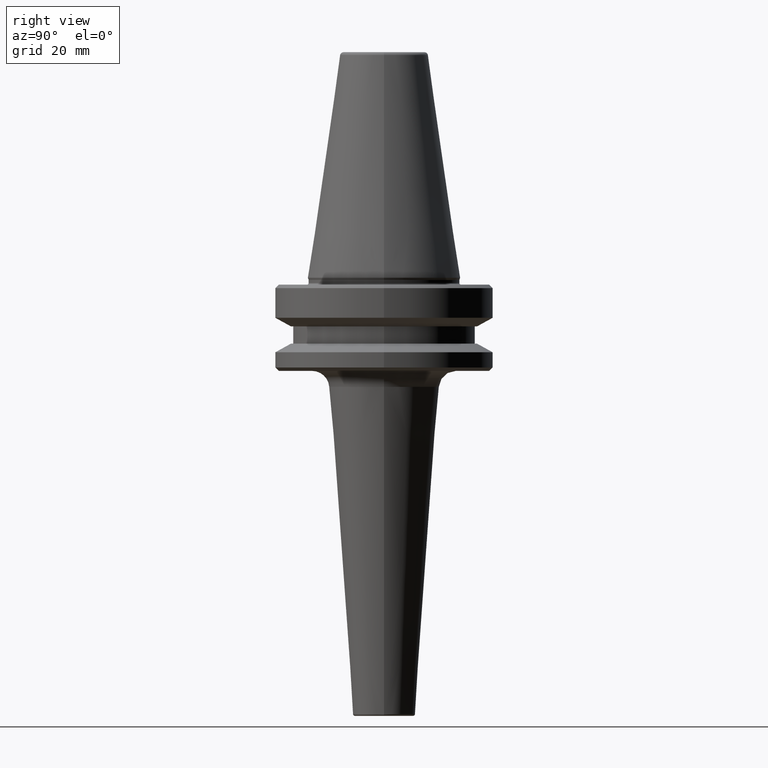
[diagram: clean part render]
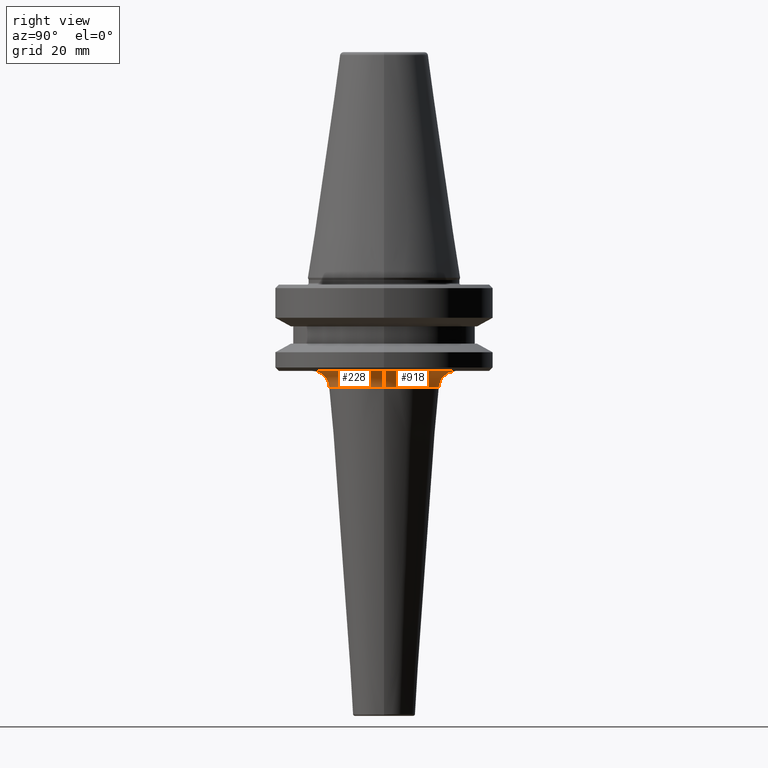
[diagram: same view with one multi-face feature highlighted, each face labeled with its STEP entity id]
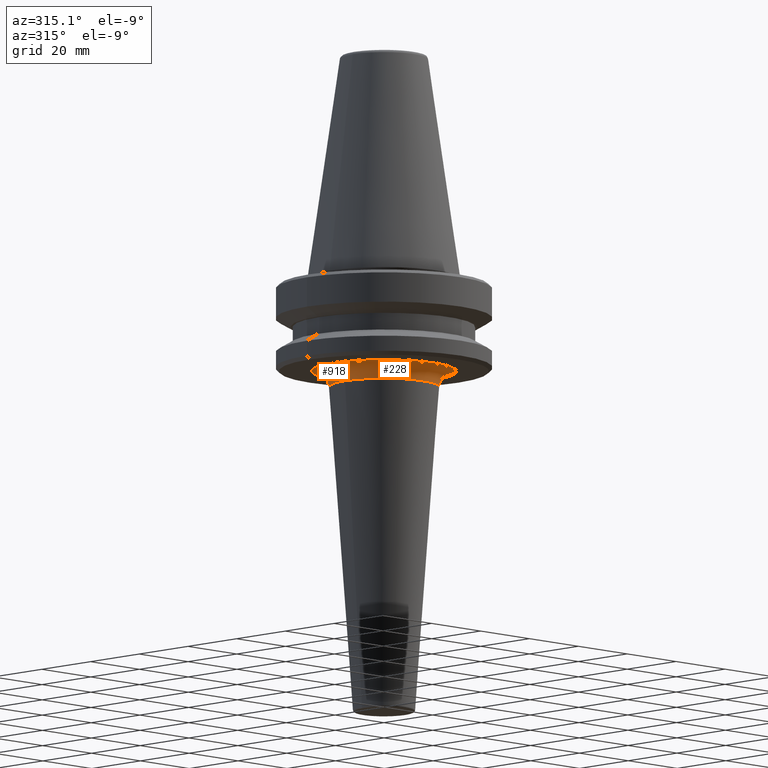
[diagram: same view with one multi-face feature highlighted, each face labeled with its STEP entity id]
A machine part, right view. The highlighted faces form ONE feature: a constant-radius fillet chain: 2 tangent blend faces with common blend radius 5 mm. The faces share edges in the B-rep.
A second angle (auxiliary view) of the same feature is appended — it is thin or edge-on in the first view.
Their STEP definitions:
[1] entity #228 (Torus):
#16 = AXIS2_PLACEMENT_3D ( 'NONE', #856, #888, #186 ) ;
#23 = ORIENTED_EDGE ( 'NONE', *, *, #433, .T. ) ;
#41 = CARTESIAN_POINT ( 'NONE',  ( 20.98658476879180800, 0.0000000000000000000, -97.40000000000806300 ) ) ;
#49 = CARTESIAN_POINT ( 'NONE',  ( -16.00000000000000400, 2.264775132424656500E-015, -97.03397767329343500 ) ) ;
#67 = EDGE_CURVE ( 'NONE', #274, #921, #635, .T. ) ;
#125 = FACE_OUTER_BOUND ( 'NONE', #676, .T. ) ;
#126 = EDGE_CURVE ( 'NONE', #921, #365, #397, .T. ) ;
#186 = DIRECTION ( 'NONE',  ( 1.000000000000000000, 0.0000000000000000000, 0.0000000000000000000 ) ) ;
#208 = CARTESIAN_POINT ( 'NONE',  ( -20.98658476879180800, 2.570115386213548200E-015, -92.40000000000806300 ) ) ;
#227 = CARTESIAN_POINT ( 'NONE',  ( 16.00000000000000400, 0.0000000000000000000, -97.03397767329343500 ) ) ;
#228 = ADVANCED_FACE ( 'NONE', ( #125 ), #958, .F. ) ;
#231 = ORIENTED_EDGE ( 'NONE', *, *, #417, .T. ) ;
#261 = AXIS2_PLACEMENT_3D ( 'NONE', #923, #850, #595 ) ;
#274 = VERTEX_POINT ( 'NONE', #208 ) ;
#295 = DIRECTION ( 'NONE',  ( 1.000000000000000000, 0.0000000000000000000, 0.0000000000000000000 ) ) ;
#356 = ORIENTED_EDGE ( 'NONE', *, *, #67, .F. ) ;
#360 = CARTESIAN_POINT ( 'NONE',  ( -20.98658476879180800, 2.570115386213548200E-015, -97.40000000000806300 ) ) ;
#365 = VERTEX_POINT ( 'NONE', #227 ) ;
#397 = CIRCLE ( 'NONE', #687, 5.000000000000004400 ) ;
#417 = EDGE_CURVE ( 'NONE', #274, #803, #807, .T. ) ;
#433 = EDGE_CURVE ( 'NONE', #803, #365, #981, .T. ) ;
#474 = DIRECTION ( 'NONE',  ( 1.224646799147353200E-016, 1.000000000000000000, 0.0000000000000000000 ) ) ;
#485 = DIRECTION ( 'NONE',  ( 0.0000000000000000000, 0.0000000000000000000, -1.000000000000000000 ) ) ;
#555 = CARTESIAN_POINT ( 'NONE',  ( 20.98658476879180800, 0.0000000000000000000, -92.40000000000806300 ) ) ;
#595 = DIRECTION ( 'NONE',  ( 1.000000000000000000, 0.0000000000000000000, 0.0000000000000000000 ) ) ;
#635 = CIRCLE ( 'NONE', #261, 20.98658476879180800 ) ;
#647 = CARTESIAN_POINT ( 'NONE',  ( 0.0000000000000000000, 0.0000000000000000000, -97.03397767329343500 ) ) ;
#676 = EDGE_LOOP ( 'NONE', ( #356, #231, #23, #893 ) ) ;
#687 = AXIS2_PLACEMENT_3D ( 'NONE', #41, #800, #485 ) ;
#725 = AXIS2_PLACEMENT_3D ( 'NONE', #360, #474, #848 ) ;
#779 = AXIS2_PLACEMENT_3D ( 'NONE', #647, #858, #295 ) ;
#800 = DIRECTION ( 'NONE',  ( 0.0000000000000000000, -1.000000000000000000, 0.0000000000000000000 ) ) ;
#803 = VERTEX_POINT ( 'NONE', #49 ) ;
#807 = CIRCLE ( 'NONE', #725, 5.000000000000008000 ) ;
#848 = DIRECTION ( 'NONE',  ( -1.000000000000000000, 1.224646799147353000E-016, 0.0000000000000000000 ) ) ;
#850 = DIRECTION ( 'NONE',  ( -0.0000000000000000000, -0.0000000000000000000, 1.000000000000000000 ) ) ;
#856 = CARTESIAN_POINT ( 'NONE',  ( 0.0000000000000000000, 0.0000000000000000000, -97.40000000000806300 ) ) ;
#858 = DIRECTION ( 'NONE',  ( -0.0000000000000000000, -0.0000000000000000000, 1.000000000000000000 ) ) ;
#888 = DIRECTION ( 'NONE',  ( -0.0000000000000000000, -0.0000000000000000000, 1.000000000000000000 ) ) ;
#893 = ORIENTED_EDGE ( 'NONE', *, *, #126, .F. ) ;
#921 = VERTEX_POINT ( 'NONE', #555 ) ;
#923 = CARTESIAN_POINT ( 'NONE',  ( 0.0000000000000000000, 0.0000000000000000000, -92.40000000000804900 ) ) ;
#958 = TOROIDAL_SURFACE ( 'NONE', #16, 20.98658476879180800, 5.000000000000009800 ) ;
#981 = CIRCLE ( 'NONE', #779, 16.00000000000000400 ) ;
[2] entity #918 (Torus):
#10 = AXIS2_PLACEMENT_3D ( 'NONE', #862, #826, #1049 ) ;
#24 = DIRECTION ( 'NONE',  ( 1.000000000000000000, 0.0000000000000000000, 0.0000000000000000000 ) ) ;
#41 = CARTESIAN_POINT ( 'NONE',  ( 20.98658476879180800, 0.0000000000000000000, -97.40000000000806300 ) ) ;
#49 = CARTESIAN_POINT ( 'NONE',  ( -16.00000000000000400, 2.264775132424656500E-015, -97.03397767329343500 ) ) ;
#97 = EDGE_CURVE ( 'NONE', #921, #274, #422, .T. ) ;
#126 = EDGE_CURVE ( 'NONE', #921, #365, #397, .T. ) ;
#208 = CARTESIAN_POINT ( 'NONE',  ( -20.98658476879180800, 2.570115386213548200E-015, -92.40000000000806300 ) ) ;
#209 = CARTESIAN_POINT ( 'NONE',  ( 0.0000000000000000000, 0.0000000000000000000, -97.03397767329343500 ) ) ;
#227 = CARTESIAN_POINT ( 'NONE',  ( 16.00000000000000400, 0.0000000000000000000, -97.03397767329343500 ) ) ;
#254 = ORIENTED_EDGE ( 'NONE', *, *, #564, .T. ) ;
#274 = VERTEX_POINT ( 'NONE', #208 ) ;
#332 = AXIS2_PLACEMENT_3D ( 'NONE', #209, #700, #24 ) ;
#360 = CARTESIAN_POINT ( 'NONE',  ( -20.98658476879180800, 2.570115386213548200E-015, -97.40000000000806300 ) ) ;
#365 = VERTEX_POINT ( 'NONE', #227 ) ;
#397 = CIRCLE ( 'NONE', #687, 5.000000000000004400 ) ;
#403 = TOROIDAL_SURFACE ( 'NONE', #10, 20.98658476879180800, 5.000000000000009800 ) ;
#413 = CARTESIAN_POINT ( 'NONE',  ( 0.0000000000000000000, 0.0000000000000000000, -92.40000000000804900 ) ) ;
#417 = EDGE_CURVE ( 'NONE', #274, #803, #807, .T. ) ;
#422 = CIRCLE ( 'NONE', #424, 20.98658476879180800 ) ;
#424 = AXIS2_PLACEMENT_3D ( 'NONE', #413, #575, #810 ) ;
#462 = ORIENTED_EDGE ( 'NONE', *, *, #97, .F. ) ;
#474 = DIRECTION ( 'NONE',  ( 1.224646799147353200E-016, 1.000000000000000000, 0.0000000000000000000 ) ) ;
#477 = CIRCLE ( 'NONE', #332, 16.00000000000000400 ) ;
#485 = DIRECTION ( 'NONE',  ( 0.0000000000000000000, 0.0000000000000000000, -1.000000000000000000 ) ) ;
#555 = CARTESIAN_POINT ( 'NONE',  ( 20.98658476879180800, 0.0000000000000000000, -92.40000000000806300 ) ) ;
#564 = EDGE_CURVE ( 'NONE', #365, #803, #477, .T. ) ;
#572 = EDGE_LOOP ( 'NONE', ( #790, #462, #602, #254 ) ) ;
#575 = DIRECTION ( 'NONE',  ( -0.0000000000000000000, -0.0000000000000000000, 1.000000000000000000 ) ) ;
#602 = ORIENTED_EDGE ( 'NONE', *, *, #126, .T. ) ;
#687 = AXIS2_PLACEMENT_3D ( 'NONE', #41, #800, #485 ) ;
#700 = DIRECTION ( 'NONE',  ( -0.0000000000000000000, -0.0000000000000000000, 1.000000000000000000 ) ) ;
#725 = AXIS2_PLACEMENT_3D ( 'NONE', #360, #474, #848 ) ;
#790 = ORIENTED_EDGE ( 'NONE', *, *, #417, .F. ) ;
#800 = DIRECTION ( 'NONE',  ( 0.0000000000000000000, -1.000000000000000000, 0.0000000000000000000 ) ) ;
#803 = VERTEX_POINT ( 'NONE', #49 ) ;
#807 = CIRCLE ( 'NONE', #725, 5.000000000000008000 ) ;
#810 = DIRECTION ( 'NONE',  ( 1.000000000000000000, 0.0000000000000000000, 0.0000000000000000000 ) ) ;
#826 = DIRECTION ( 'NONE',  ( -0.0000000000000000000, -0.0000000000000000000, 1.000000000000000000 ) ) ;
#829 = FACE_OUTER_BOUND ( 'NONE', #572, .T. ) ;
#848 = DIRECTION ( 'NONE',  ( -1.000000000000000000, 1.224646799147353000E-016, 0.0000000000000000000 ) ) ;
#862 = CARTESIAN_POINT ( 'NONE',  ( 0.0000000000000000000, 0.0000000000000000000, -97.40000000000806300 ) ) ;
#918 = ADVANCED_FACE ( 'NONE', ( #829 ), #403, .F. ) ;
#921 = VERTEX_POINT ( 'NONE', #555 ) ;
#1049 = DIRECTION ( 'NONE',  ( 1.000000000000000000, 0.0000000000000000000, 0.0000000000000000000 ) ) ;